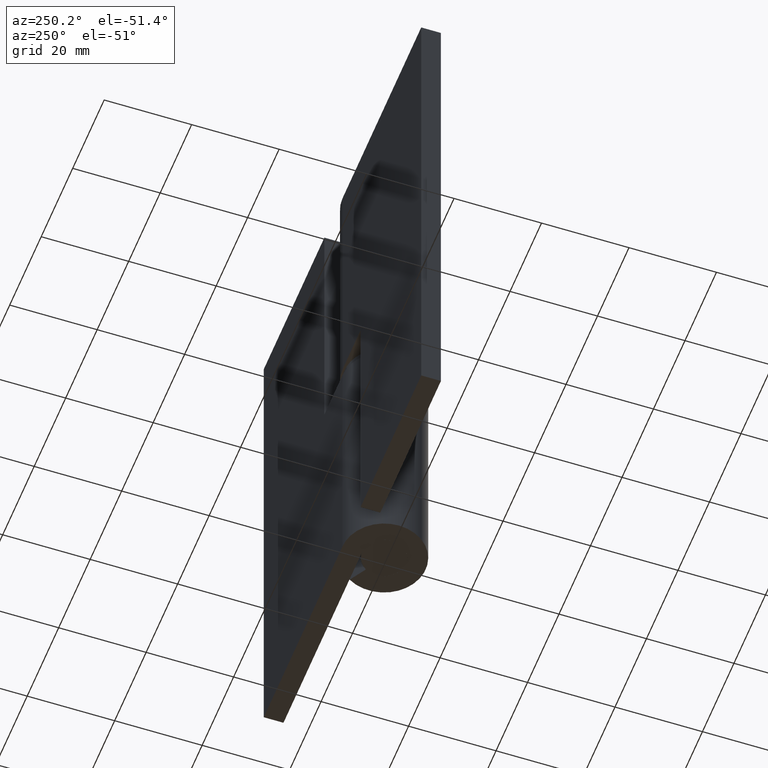
[diagram: clean part render]
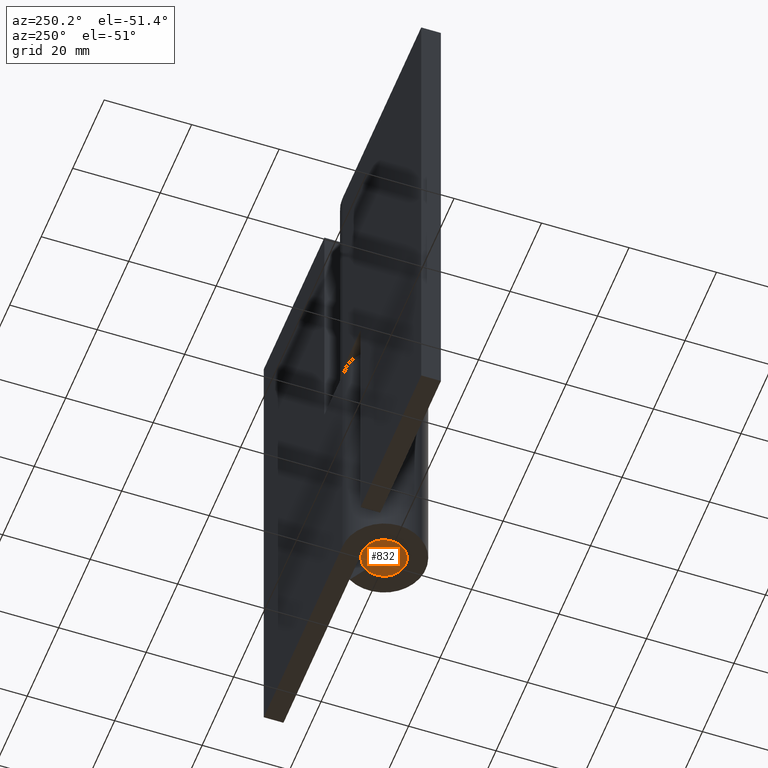
[diagram: same view with one face highlighted and labeled with its STEP entity id]
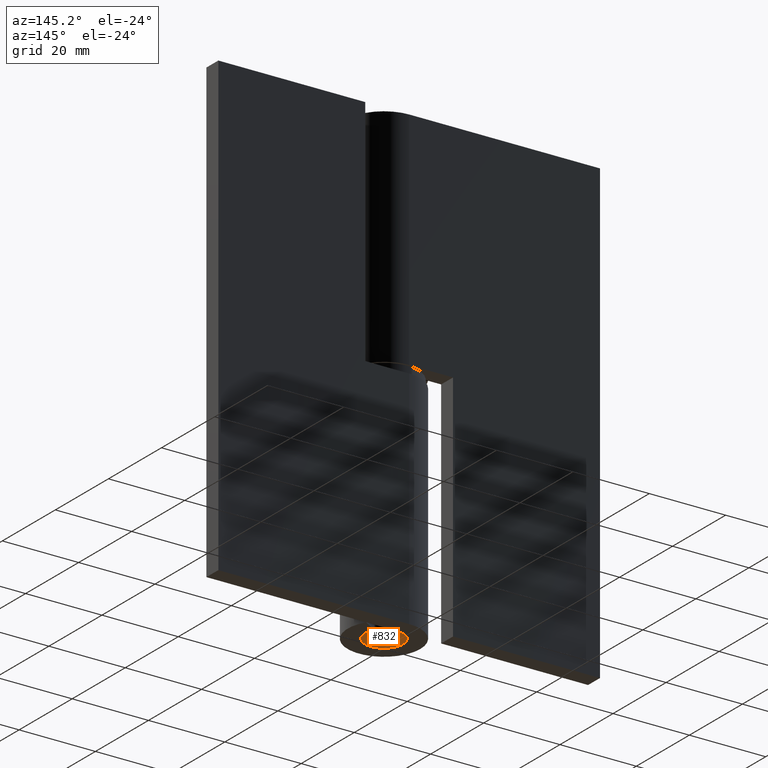
[diagram: same view with one face highlighted and labeled with its STEP entity id]
A machine part, auxiliary view. The second image highlights one B-rep face of the part: STEP entity #832.
A second angle (auxiliary view) of the same face is appended — the face is thin or edge-on in the first view.
In plain terms, the highlighted face is a freeform B-spline surface patch.
Its self-contained STEP definition (entity closure, byte-faithful):
#543=CARTESIAN_POINT('',(0.305242697868242,-4.990673992097471,-8.881784E-016));
#544=VERTEX_POINT('',#543);
#550=CARTESIAN_POINT('',(5.0,0.0,0.0));
#551=VERTEX_POINT('',#550);
#552=CARTESIAN_POINT('',(5.0,0.0,0.0));
#553=CARTESIAN_POINT('',(4.999999999999999,-4.703530334162168,0.0));
#554=CARTESIAN_POINT('',(0.305242697868242,-4.990673992097471,-8.881784E-016));
#562=(BOUNDED_CURVE()B_SPLINE_CURVE(2,(#552,#553,#554),.UNSPECIFIED.,.F.,.U.)B_SPLINE_CURVE_WITH_KNOTS((3,3),(0.500000000000000,0.739332962228556),.UNSPECIFIED.)CURVE()GEOMETRIC_REPRESENTATION_ITEM()RATIONAL_B_SPLINE_CURVE((1.0,0.719603993298880,0.976072041644456))REPRESENTATION_ITEM(''));
#563=EDGE_CURVE('',#551,#544,#562,.T.);
#565=CARTESIAN_POINT('',(4.680719087080684,1.758086695196526,5.635189E-015));
#566=VERTEX_POINT('',#565);
#567=CARTESIAN_POINT('',(4.680719087080684,1.758086695196526,5.635189E-015));
#568=CARTESIAN_POINT('',(5.0,0.908035177646552,0.0));
#569=CARTESIAN_POINT('',(5.0,0.0,0.0));
#577=(BOUNDED_CURVE()B_SPLINE_CURVE(2,(#567,#568,#569),.UNSPECIFIED.,.F.,.U.)B_SPLINE_CURVE_WITH_KNOTS((3,3),(0.440284278098072,0.500000000000000),.UNSPECIFIED.)CURVE()GEOMETRIC_REPRESENTATION_ITEM()RATIONAL_B_SPLINE_CURVE((0.893499685822202,0.930038679993502,1.0))REPRESENTATION_ITEM(''));
#578=EDGE_CURVE('',#566,#551,#577,.T.);
#628=CARTESIAN_POINT('',(-5.0,0.0,0.0));
#629=VERTEX_POINT('',#628);
#630=CARTESIAN_POINT('',(-5.0,0.0,0.0));
#631=CARTESIAN_POINT('',(-5.000000000000001,5.000000000000001,0.0));
#632=CARTESIAN_POINT('',(0.0,5.0,0.0));
#633=CARTESIAN_POINT('',(3.463050489133572,5.0,0.0));
#634=CARTESIAN_POINT('',(4.680719087080684,1.758086695196526,5.635189E-015));
#642=(BOUNDED_CURVE()B_SPLINE_CURVE(2,(#630,#631,#632,#633,#634),.UNSPECIFIED.,.F.,.U.)B_SPLINE_CURVE_WITH_KNOTS((3,2,3),(0.0,0.250000000000000,0.440284278098072),.UNSPECIFIED.)CURVE()GEOMETRIC_REPRESENTATION_ITEM()RATIONAL_B_SPLINE_CURVE((1.0,0.707106781186548,1.0,0.777068101193046,0.893499685822202))REPRESENTATION_ITEM(''));
#643=EDGE_CURVE('',#629,#566,#642,.T.);
#645=CARTESIAN_POINT('',(0.305242697868242,-4.990673992097471,-8.881784E-016));
#646=CARTESIAN_POINT('',(0.152763816687446,-4.999999999999999,0.0));
#647=CARTESIAN_POINT('',(0.0,-5.0,0.0));
#648=CARTESIAN_POINT('',(-5.000000000000001,-5.000000000000001,0.0));
#649=CARTESIAN_POINT('',(-5.0,0.0,0.0));
#657=(BOUNDED_CURVE()B_SPLINE_CURVE(2,(#645,#646,#647,#648,#649),.UNSPECIFIED.,.F.,.U.)B_SPLINE_CURVE_WITH_KNOTS((3,2,3),(0.739332962228557,0.750000000000000,1.0),.UNSPECIFIED.)CURVE()GEOMETRIC_REPRESENTATION_ITEM()RATIONAL_B_SPLINE_CURVE((0.976072041644458,0.987502787887669,1.0,0.707106781186548,1.0))REPRESENTATION_ITEM(''));
#658=EDGE_CURVE('',#544,#629,#657,.T.);
#821=CARTESIAN_POINT('',(-5.499499980618060,-5.499378106426892,0.0));
#822=CARTESIAN_POINT('',(5.499500248838961,-5.499378106426892,0.0));
#823=CARTESIAN_POINT('',(-5.499499980618060,5.499405286144910,0.0));
#824=CARTESIAN_POINT('',(5.499500248838961,5.499405286144910,0.0));
#825=B_SPLINE_SURFACE_WITH_KNOTS('',1,1,((#821,#823),(#822,#824)),.UNSPECIFIED.,.F.,.F.,.U.,(2,2),(2,2),(0.0,10.999000229457019),(0.0,10.998783392571800),.UNSPECIFIED.);
#826=ORIENTED_EDGE('',*,*,#643,.T.);
#827=ORIENTED_EDGE('',*,*,#578,.T.);
#828=ORIENTED_EDGE('',*,*,#563,.T.);
#829=ORIENTED_EDGE('',*,*,#658,.T.);
#830=EDGE_LOOP('',(#826,#827,#828,#829));
#831=FACE_OUTER_BOUND('',#830,.T.);
#832=ADVANCED_FACE('',(#831),#825,.F.);